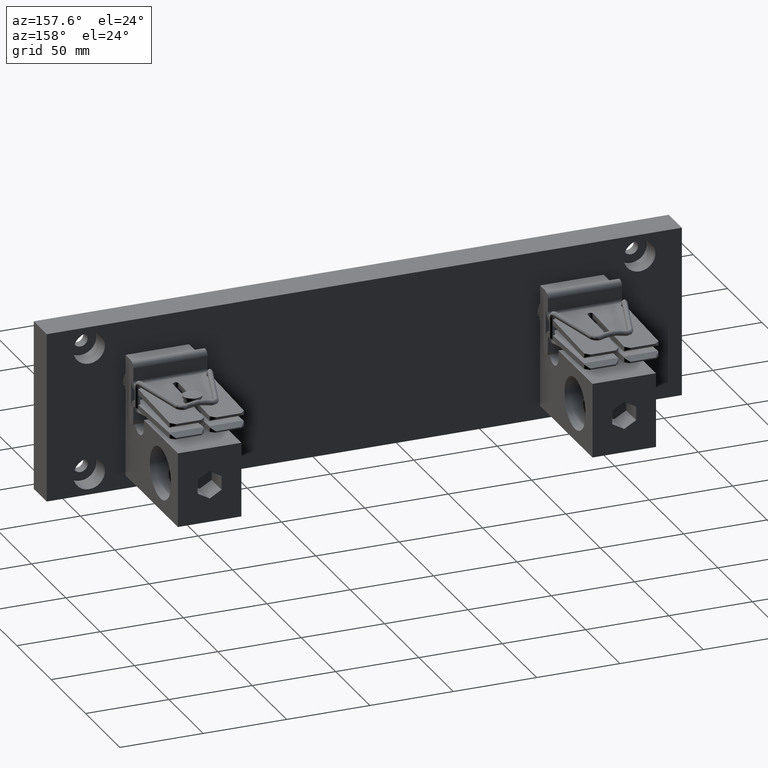
[diagram: clean part render]
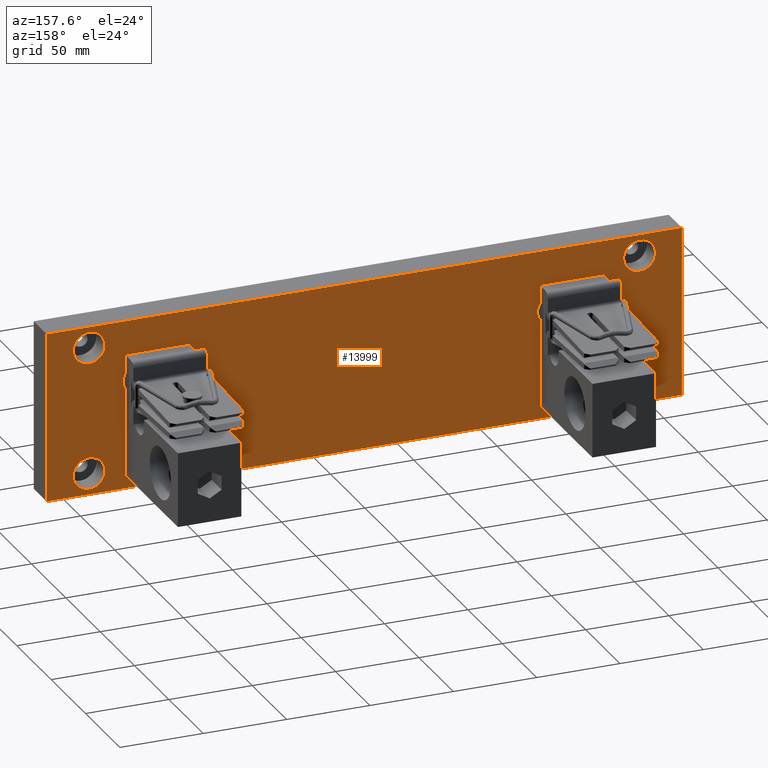
[diagram: same view with one face highlighted and labeled with its STEP entity id]
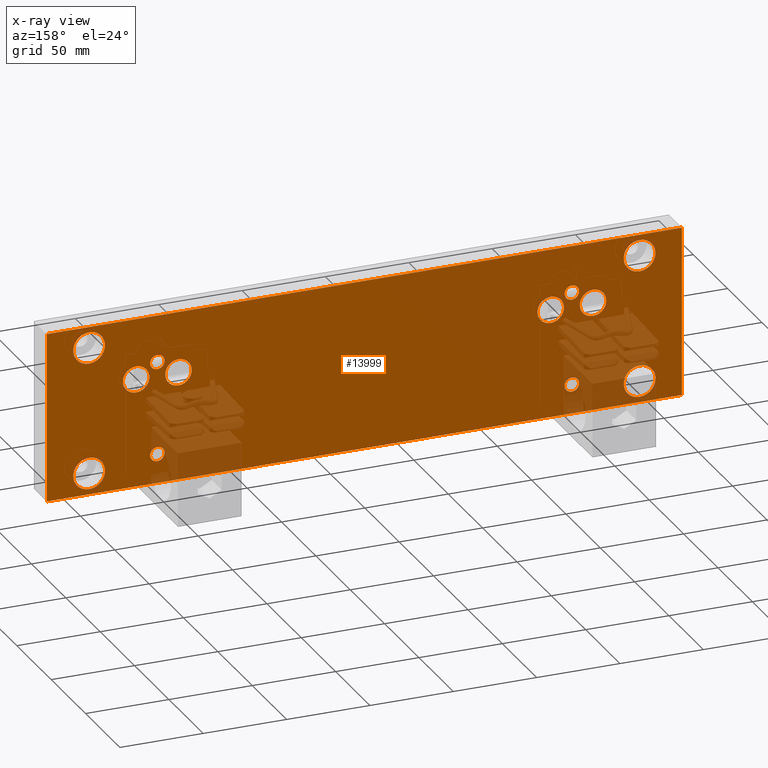
[diagram: x-ray of the same camera — body ghosted, the highlighted face saturated]
A machine part, auxiliary view. The second image highlights one B-rep face of the part: STEP entity #13999.
The next image is the same camera in x-ray: the body ghosted, the highlighted face saturated — about 14% of this face is hidden behind the body in this view.
In plain terms, the highlighted planar face has unit normal (0, 1, 0).
Its self-contained STEP definition (entity closure, byte-faithful):
#7 = CIRCLE ( 'NONE', #29025, 0.3750000000000001100 ) ;
#121 = EDGE_CURVE ( 'NONE', #23942, #23942, #21059, .T. ) ;
#287 = VERTEX_POINT ( 'NONE', #26091 ) ;
#300 = EDGE_CURVE ( 'NONE', #12031, #12031, #3548, .T. ) ;
#489 = ORIENTED_EDGE ( 'NONE', *, *, #4459, .T. ) ;
#620 = AXIS2_PLACEMENT_3D ( 'NONE', #26934, #13496, #29205 ) ;
#1165 = CARTESIAN_POINT ( 'NONE',  ( 11.39999999999999700, -0.5000000000000000000, 1.310000000000000500 ) ) ;
#1257 = FACE_BOUND ( 'NONE', #23894, .T. ) ;
#1908 = CARTESIAN_POINT ( 'NONE',  ( -2.600000000000000500, -0.5000000000000000000, 1.434999999999999800 ) ) ;
#2020 = CARTESIAN_POINT ( 'NONE',  ( -1.600000000000000300, -0.5000000000000000000, -2.064999999999999900 ) ) ;
#2565 = DIRECTION ( 'NONE',  ( 0.0000000000000000000, 1.000000000000000000, 0.0000000000000000000 ) ) ;
#2633 = CARTESIAN_POINT ( 'NONE',  ( -5.463695987328526400E-016, -0.5000000000000001100, -2.044500000000000200 ) ) ;
#2644 = FACE_BOUND ( 'NONE', #23301, .T. ) ;
#3145 = ORIENTED_EDGE ( 'NONE', *, *, #21923, .F. ) ;
#3425 = EDGE_CURVE ( 'NONE', #4470, #25879, #27504, .T. ) ;
#3481 = VERTEX_POINT ( 'NONE', #3742 ) ;
#3548 = CIRCLE ( 'NONE', #4671, 0.1694999999999999300 ) ;
#3653 = EDGE_CURVE ( 'NONE', #20427, #20427, #3683, .T. ) ;
#3683 = CIRCLE ( 'NONE', #18335, 0.1694999999999999300 ) ;
#3742 = CARTESIAN_POINT ( 'NONE',  ( 11.39999999999999700, -0.5000000000000000000, -1.689999999999999700 ) ) ;
#3924 = CIRCLE ( 'NONE', #13980, 0.3124999999999992800 ) ;
#4091 = LINE ( 'NONE', #9855, #23422 ) ;
#4227 = DIRECTION ( 'NONE',  ( 0.0000000000000000000, 1.000000000000000000, 0.0000000000000000000 ) ) ;
#4247 = CARTESIAN_POINT ( 'NONE',  ( 9.789999999999999100, -0.5000000000000001100, -2.044499999999999300 ) ) ;
#4250 = VECTOR ( 'NONE', #6521, 39.37007874015748100 ) ;
#4330 = ORIENTED_EDGE ( 'NONE', *, *, #19669, .T. ) ;
#4341 = DIRECTION ( 'NONE',  ( 0.0000000000000000000, 0.0000000000000000000, 1.000000000000000000 ) ) ;
#4349 = CARTESIAN_POINT ( 'NONE',  ( -0.5000000000000006700, -0.5000000000000000000, -0.005000000000000219500 ) ) ;
#4455 = DIRECTION ( 'NONE',  ( -1.000000000000000000, 0.0000000000000000000, 1.456985596620940400E-016 ) ) ;
#4459 = EDGE_CURVE ( 'NONE', #7834, #7834, #22604, .T. ) ;
#4470 = VERTEX_POINT ( 'NONE', #18288 ) ;
#4671 = AXIS2_PLACEMENT_3D ( 'NONE', #26033, #16660, #8287 ) ;
#4948 = AXIS2_PLACEMENT_3D ( 'NONE', #27342, #11970, #13331 ) ;
#4978 = EDGE_CURVE ( 'NONE', #18418, #4470, #4091, .T. ) ;
#5279 = ORIENTED_EDGE ( 'NONE', *, *, #18188, .F. ) ;
#5330 = CARTESIAN_POINT ( 'NONE',  ( -2.600000000000000500, -0.5000000000000000000, -2.564999999999999900 ) ) ;
#5965 = CARTESIAN_POINT ( 'NONE',  ( -0.5000000000000006700, -0.5000000000000000000, 0.3074999999999990500 ) ) ;
#6147 = AXIS2_PLACEMENT_3D ( 'NONE', #7980, #8180, #14927 ) ;
#6429 = CARTESIAN_POINT ( 'NONE',  ( 4.900000000000002100, -0.5000000000000000000, -0.5650000000000016100 ) ) ;
#6495 = CARTESIAN_POINT ( 'NONE',  ( 11.39999999999999700, -0.5000000000000000000, 0.9350000000000001600 ) ) ;
#6521 = DIRECTION ( 'NONE',  ( -0.0000000000000000000, -0.0000000000000000000, 1.000000000000000000 ) ) ;
#6644 = DIRECTION ( 'NONE',  ( 0.0000000000000000000, 0.0000000000000000000, 1.000000000000000000 ) ) ;
#7455 = CARTESIAN_POINT ( 'NONE',  ( 9.789999999999999100, -0.5000000000000001100, 0.1555000000000004400 ) ) ;
#7644 = CARTESIAN_POINT ( 'NONE',  ( -1.600000000000000300, -0.5000000000000000000, -1.689999999999999700 ) ) ;
#7703 = AXIS2_PLACEMENT_3D ( 'NONE', #6495, #22173, #8782 ) ;
#7745 = EDGE_LOOP ( 'NONE', ( #22947 ) ) ;
#7775 = EDGE_LOOP ( 'NONE', ( #5279 ) ) ;
#7830 = EDGE_CURVE ( 'NONE', #27467, #27467, #25928, .T. ) ;
#7834 = VERTEX_POINT ( 'NONE', #7455 ) ;
#7980 = CARTESIAN_POINT ( 'NONE',  ( 9.289999999999999100, -0.5000000000000000000, -0.005000000000000219500 ) ) ;
#8054 = FACE_BOUND ( 'NONE', #16431, .T. ) ;
#8180 = DIRECTION ( 'NONE',  ( 0.0000000000000000000, 1.000000000000000000, 0.0000000000000000000 ) ) ;
#8228 = ORIENTED_EDGE ( 'NONE', *, *, #7830, .F. ) ;
#8287 = DIRECTION ( 'NONE',  ( 0.0000000000000000000, 0.0000000000000000000, -1.000000000000000000 ) ) ;
#8632 = EDGE_LOOP ( 'NONE', ( #489 ) ) ;
#8707 = DIRECTION ( 'NONE',  ( 0.0000000000000000000, -0.0000000000000000000, 1.000000000000000000 ) ) ;
#8782 = DIRECTION ( 'NONE',  ( 0.0000000000000000000, 0.0000000000000000000, 1.000000000000000000 ) ) ;
#8860 = DIRECTION ( 'NONE',  ( 1.000000000000000000, -0.0000000000000000000, -1.456985596620940400E-016 ) ) ;
#9034 = AXIS2_PLACEMENT_3D ( 'NONE', #6429, #22108, #8707 ) ;
#9415 = FACE_BOUND ( 'NONE', #18539, .T. ) ;
#9505 = EDGE_LOOP ( 'NONE', ( #3145 ) ) ;
#9816 = EDGE_CURVE ( 'NONE', #19392, #19392, #7, .T. ) ;
#9855 = CARTESIAN_POINT ( 'NONE',  ( 12.40000000000000000, -0.5000000000000000000, 1.434999999999997600 ) ) ;
#10041 = EDGE_LOOP ( 'NONE', ( #22717 ) ) ;
#10145 = FACE_BOUND ( 'NONE', #21527, .T. ) ;
#10661 = VERTEX_POINT ( 'NONE', #5330 ) ;
#10931 = EDGE_LOOP ( 'NONE', ( #21292 ) ) ;
#10953 = VERTEX_POINT ( 'NONE', #5965 ) ;
#10956 = VECTOR ( 'NONE', #20538, 39.37007874015748100 ) ;
#10996 = CIRCLE ( 'NONE', #24796, 0.3124999999999998300 ) ;
#11049 = EDGE_CURVE ( 'NONE', #10661, #18418, #26760, .T. ) ;
#11366 = CARTESIAN_POINT ( 'NONE',  ( 11.39999999999999700, -0.5000000000000000000, -2.064999999999999900 ) ) ;
#11970 = DIRECTION ( 'NONE',  ( -0.0000000000000000000, -1.000000000000000000, -0.0000000000000000000 ) ) ;
#12031 = VERTEX_POINT ( 'NONE', #2633 ) ;
#12952 = CARTESIAN_POINT ( 'NONE',  ( 0.4999999999999996100, -0.5000000000000000000, 0.3074999999999996100 ) ) ;
#13331 = DIRECTION ( 'NONE',  ( 0.0000000000000000000, 0.0000000000000000000, -1.000000000000000000 ) ) ;
#13487 = DIRECTION ( 'NONE',  ( -0.0000000000000000000, 1.000000000000000000, -0.0000000000000000000 ) ) ;
#13496 = DIRECTION ( 'NONE',  ( -0.0000000000000000000, -1.000000000000000000, -0.0000000000000000000 ) ) ;
#13529 = EDGE_CURVE ( 'NONE', #15176, #15176, #17050, .T. ) ;
#13625 = DIRECTION ( 'NONE',  ( 0.0000000000000000000, 0.0000000000000000000, 1.000000000000000000 ) ) ;
#13804 = DIRECTION ( 'NONE',  ( 0.0000000000000000000, 0.0000000000000000000, -1.000000000000000000 ) ) ;
#13834 = DIRECTION ( 'NONE',  ( -0.0000000000000000000, -1.000000000000000000, -0.0000000000000000000 ) ) ;
#13853 = CARTESIAN_POINT ( 'NONE',  ( -5.463695987328526400E-016, -0.5000000000000001100, 0.3249999999999996800 ) ) ;
#13980 = AXIS2_PLACEMENT_3D ( 'NONE', #4349, #20058, #6644 ) ;
#13986 = FACE_BOUND ( 'NONE', #9505, .T. ) ;
#13999 = ADVANCED_FACE ( 'NONE', ( #1257, #2644, #25926, #13986, #8054, #19254, #20629, #26623, #9415, #21347, #27339, #10145, #16081 ), #26544, .T. ) ;
#14113 = CARTESIAN_POINT ( 'NONE',  ( -5.463695987328526400E-016, -0.5000000000000001100, 0.1554999999999997500 ) ) ;
#14927 = DIRECTION ( 'NONE',  ( 0.0000000000000000000, 0.0000000000000000000, 1.000000000000000000 ) ) ;
#15176 = VERTEX_POINT ( 'NONE', #1165 ) ;
#15183 = CIRCLE ( 'NONE', #17476, 0.3124999999999992800 ) ;
#16081 = FACE_OUTER_BOUND ( 'NONE', #22369, .T. ) ;
#16101 = CARTESIAN_POINT ( 'NONE',  ( 0.4999999999999996100, -0.5000000000000000000, -0.005000000000000219500 ) ) ;
#16131 = CARTESIAN_POINT ( 'NONE',  ( -2.600000000000000500, -0.5000000000000000000, 1.434999999999999800 ) ) ;
#16431 = EDGE_LOOP ( 'NONE', ( #8228 ) ) ;
#16660 = DIRECTION ( 'NONE',  ( -0.0000000000000000000, -1.000000000000000000, -0.0000000000000000000 ) ) ;
#17027 = EDGE_CURVE ( 'NONE', #287, #287, #15183, .T. ) ;
#17050 = CIRCLE ( 'NONE', #7703, 0.3750000000000003900 ) ;
#17106 = ORIENTED_EDGE ( 'NONE', *, *, #11049, .T. ) ;
#17476 = AXIS2_PLACEMENT_3D ( 'NONE', #17688, #4227, #19961 ) ;
#17688 = CARTESIAN_POINT ( 'NONE',  ( 10.28999999999999900, -0.5000000000000000000, -0.005000000000000219500 ) ) ;
#17791 = DIRECTION ( 'NONE',  ( -0.0000000000000000000, 1.000000000000000000, -0.0000000000000000000 ) ) ;
#18188 = EDGE_CURVE ( 'NONE', #10953, #10953, #3924, .T. ) ;
#18288 = CARTESIAN_POINT ( 'NONE',  ( 12.40000000000000000, -0.5000000000000000000, 1.434999999999997600 ) ) ;
#18335 = AXIS2_PLACEMENT_3D ( 'NONE', #13853, #13834, #13804 ) ;
#18348 = DIRECTION ( 'NONE',  ( 0.0000000000000000000, 0.0000000000000000000, 1.000000000000000000 ) ) ;
#18418 = VERTEX_POINT ( 'NONE', #16131 ) ;
#18539 = EDGE_LOOP ( 'NONE', ( #19617 ) ) ;
#19147 = ORIENTED_EDGE ( 'NONE', *, *, #26531, .T. ) ;
#19254 = FACE_BOUND ( 'NONE', #10931, .T. ) ;
#19392 = VERTEX_POINT ( 'NONE', #25695 ) ;
#19416 = CARTESIAN_POINT ( 'NONE',  ( 12.40000000000000000, -0.5000000000000000000, 1.434999999999997600 ) ) ;
#19617 = ORIENTED_EDGE ( 'NONE', *, *, #3653, .T. ) ;
#19669 = EDGE_CURVE ( 'NONE', #25879, #10661, #23212, .T. ) ;
#19702 = EDGE_CURVE ( 'NONE', #3481, #3481, #24220, .T. ) ;
#19961 = DIRECTION ( 'NONE',  ( 0.0000000000000000000, 0.0000000000000000000, 1.000000000000000000 ) ) ;
#20058 = DIRECTION ( 'NONE',  ( 0.0000000000000000000, 1.000000000000000000, 0.0000000000000000000 ) ) ;
#20160 = CARTESIAN_POINT ( 'NONE',  ( 12.40000000000000000, -0.5000000000000000000, -2.565000000000002200 ) ) ;
#20427 = VERTEX_POINT ( 'NONE', #14113 ) ;
#20538 = DIRECTION ( 'NONE',  ( 0.0000000000000000000, 0.0000000000000000000, -1.000000000000000000 ) ) ;
#20629 = FACE_BOUND ( 'NONE', #10041, .T. ) ;
#20646 = CIRCLE ( 'NONE', #620, 0.1694999999999993700 ) ;
#20647 = AXIS2_PLACEMENT_3D ( 'NONE', #2020, #17791, #4341 ) ;
#21059 = CIRCLE ( 'NONE', #6147, 0.3124999999999998300 ) ;
#21292 = ORIENTED_EDGE ( 'NONE', *, *, #9816, .F. ) ;
#21347 = FACE_BOUND ( 'NONE', #7745, .T. ) ;
#21527 = EDGE_LOOP ( 'NONE', ( #19147 ) ) ;
#21923 = EDGE_CURVE ( 'NONE', #23886, #23886, #10996, .T. ) ;
#21927 = AXIS2_PLACEMENT_3D ( 'NONE', #11366, #27054, #13625 ) ;
#22080 = EDGE_LOOP ( 'NONE', ( #24811 ) ) ;
#22108 = DIRECTION ( 'NONE',  ( 0.0000000000000000000, 1.000000000000000000, 0.0000000000000000000 ) ) ;
#22173 = DIRECTION ( 'NONE',  ( -0.0000000000000000000, 1.000000000000000000, -0.0000000000000000000 ) ) ;
#22369 = EDGE_LOOP ( 'NONE', ( #17106, #28033, #25699, #4330 ) ) ;
#22604 = CIRCLE ( 'NONE', #4948, 0.1694999999999993700 ) ;
#22717 = ORIENTED_EDGE ( 'NONE', *, *, #13529, .F. ) ;
#22947 = ORIENTED_EDGE ( 'NONE', *, *, #300, .T. ) ;
#23212 = LINE ( 'NONE', #20160, #23242 ) ;
#23242 = VECTOR ( 'NONE', #4455, 39.37007874015748100 ) ;
#23301 = EDGE_LOOP ( 'NONE', ( #24411 ) ) ;
#23422 = VECTOR ( 'NONE', #8860, 39.37007874015748100 ) ;
#23516 = VERTEX_POINT ( 'NONE', #4247 ) ;
#23886 = VERTEX_POINT ( 'NONE', #12952 ) ;
#23894 = EDGE_LOOP ( 'NONE', ( #24310 ) ) ;
#23942 = VERTEX_POINT ( 'NONE', #25103 ) ;
#24220 = CIRCLE ( 'NONE', #21927, 0.3750000000000002200 ) ;
#24310 = ORIENTED_EDGE ( 'NONE', *, *, #17027, .F. ) ;
#24411 = ORIENTED_EDGE ( 'NONE', *, *, #121, .F. ) ;
#24602 = CARTESIAN_POINT ( 'NONE',  ( 12.40000000000000000, -0.5000000000000000000, -2.565000000000002200 ) ) ;
#24796 = AXIS2_PLACEMENT_3D ( 'NONE', #16101, #2565, #18348 ) ;
#24811 = ORIENTED_EDGE ( 'NONE', *, *, #19702, .F. ) ;
#25103 = CARTESIAN_POINT ( 'NONE',  ( 9.289999999999999100, -0.5000000000000000000, 0.3074999999999996100 ) ) ;
#25695 = CARTESIAN_POINT ( 'NONE',  ( -1.600000000000000300, -0.5000000000000000000, 1.310000000000000100 ) ) ;
#25699 = ORIENTED_EDGE ( 'NONE', *, *, #3425, .T. ) ;
#25879 = VERTEX_POINT ( 'NONE', #24602 ) ;
#25926 = FACE_BOUND ( 'NONE', #7775, .T. ) ;
#25928 = CIRCLE ( 'NONE', #20647, 0.3750000000000002200 ) ;
#26033 = CARTESIAN_POINT ( 'NONE',  ( -5.463695987328526400E-016, -0.5000000000000001100, -1.875000000000000000 ) ) ;
#26091 = CARTESIAN_POINT ( 'NONE',  ( 10.28999999999999900, -0.5000000000000000000, 0.3074999999999990500 ) ) ;
#26531 = EDGE_CURVE ( 'NONE', #23516, #23516, #20646, .T. ) ;
#26544 = PLANE ( 'NONE',  #9034 ) ;
#26623 = FACE_BOUND ( 'NONE', #22080, .T. ) ;
#26760 = LINE ( 'NONE', #1908, #4250 ) ;
#26922 = CARTESIAN_POINT ( 'NONE',  ( -1.600000000000000300, -0.5000000000000000000, 0.9349999999999998300 ) ) ;
#26934 = CARTESIAN_POINT ( 'NONE',  ( 9.789999999999999100, -0.5000000000000001100, -1.875000000000000000 ) ) ;
#27054 = DIRECTION ( 'NONE',  ( -0.0000000000000000000, 1.000000000000000000, -0.0000000000000000000 ) ) ;
#27339 = FACE_BOUND ( 'NONE', #8632, .T. ) ;
#27342 = CARTESIAN_POINT ( 'NONE',  ( 9.789999999999999100, -0.5000000000000001100, 0.3249999999999997900 ) ) ;
#27467 = VERTEX_POINT ( 'NONE', #7644 ) ;
#27504 = LINE ( 'NONE', #19416, #10956 ) ;
#28033 = ORIENTED_EDGE ( 'NONE', *, *, #4978, .T. ) ;
#29025 = AXIS2_PLACEMENT_3D ( 'NONE', #26922, #13487, #29197 ) ;
#29197 = DIRECTION ( 'NONE',  ( 0.0000000000000000000, 0.0000000000000000000, 1.000000000000000000 ) ) ;
#29205 = DIRECTION ( 'NONE',  ( 0.0000000000000000000, 0.0000000000000000000, -1.000000000000000000 ) ) ;